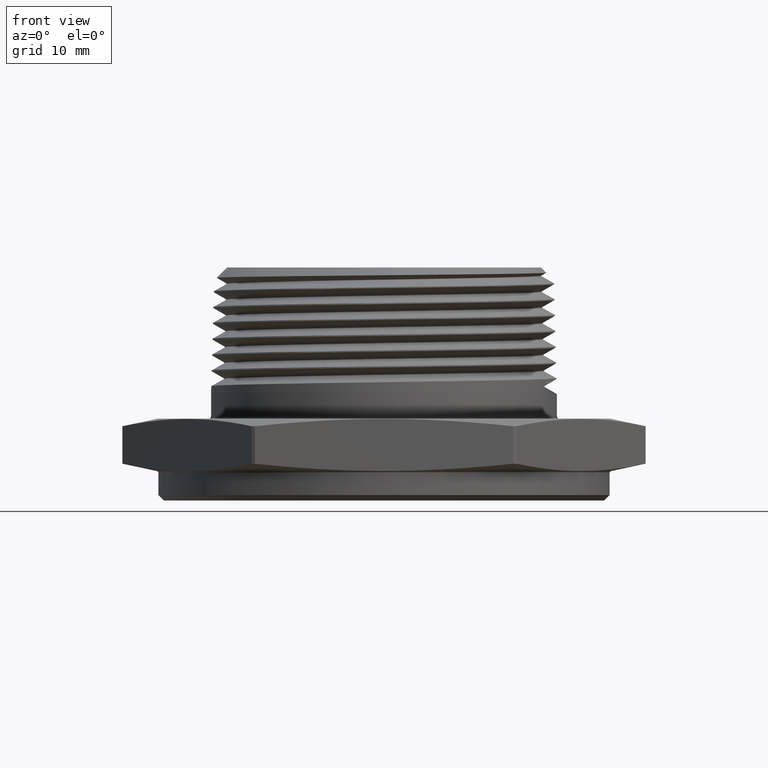
[diagram: clean part render]
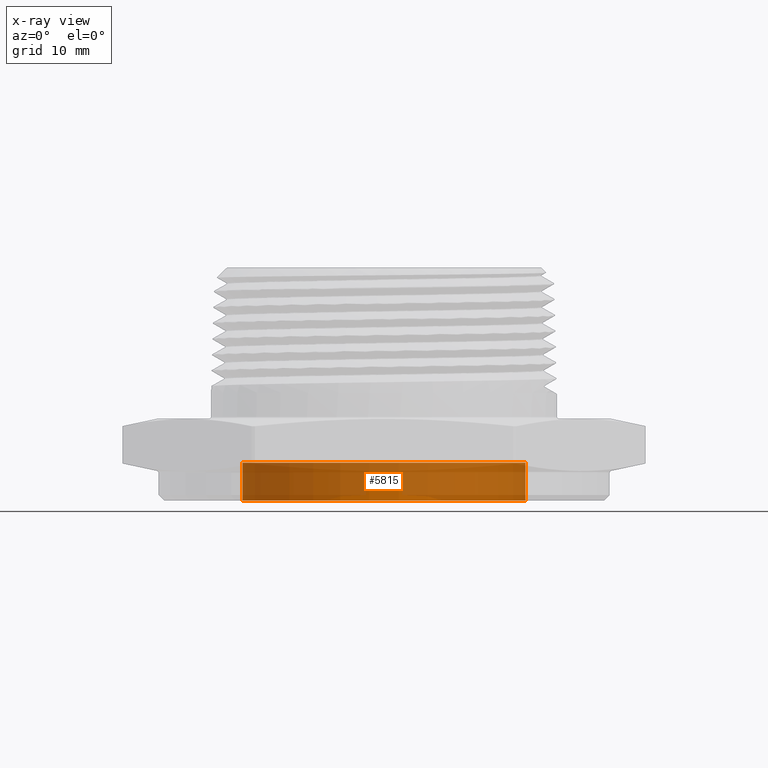
[diagram: x-ray — body ghosted, one internal face saturated and labeled with its STEP entity id]
A machine part, front view, then the same camera in x-ray: the body is ghosted and one INTERNAL B-rep face — a face not visible from any outside direction — is saturated and labeled: STEP entity #5815.
In plain terms, the highlighted cylindrical surface (partial cylindrical patch) has radius 19.7358 mm, axis along (-0, -0, 1).
Its self-contained STEP definition (entity closure, byte-faithful):
#21 = VERTEX_POINT ( 'NONE', #7777 ) ;
#61 = AXIS2_PLACEMENT_3D ( 'NONE', #763, #764, #761 ) ;
#112 = EDGE_CURVE ( 'NONE', #21, #696, #5138, .T. ) ;
#113 = EDGE_CURVE ( 'NONE', #696, #678, #5139, .T. ) ;
#114 = EDGE_CURVE ( 'NONE', #692, #678, #5144, .T. ) ;
#116 = EDGE_CURVE ( 'NONE', #21, #692, #5145, .T. ) ;
#248 = AXIS2_PLACEMENT_3D ( 'NONE', #7290, #7289, #7288 ) ;
#250 = AXIS2_PLACEMENT_3D ( 'NONE', #7281, #7280, #7279 ) ;
#580 = FACE_OUTER_BOUND ( 'NONE', #5020, .T. ) ;
#586 = CYLINDRICAL_SURFACE ( 'NONE', #61, 0.7769999999999999100 ) ;
#678 = VERTEX_POINT ( 'NONE', #3566 ) ;
#692 = VERTEX_POINT ( 'NONE', #3580 ) ;
#696 = VERTEX_POINT ( 'NONE', #3584 ) ;
#761 = DIRECTION ( 'NONE',  ( 1.000000000000000000, 0.0000000000000000000, 0.0000000000000000000 ) ) ;
#763 = CARTESIAN_POINT ( 'NONE',  ( 1.224646799147352600E-018, 0.0000000000000000000, -0.1600000000000000000 ) ) ;
#764 = DIRECTION ( 'NONE',  ( -2.307956700049595900E-032, -0.0000000000000000000, 1.000000000000000000 ) ) ;
#3566 = CARTESIAN_POINT ( 'NONE',  ( 0.7769999999999999100, 0.0000000000000000000, 0.04685039370078740400 ) ) ;
#3580 = CARTESIAN_POINT ( 'NONE',  ( 0.7769999999999999100, 0.0000000000000000000, -0.1600000000000000000 ) ) ;
#3584 = CARTESIAN_POINT ( 'NONE',  ( -0.7769999999999999100, 9.515505629374934300E-017, 0.04685039370078740400 ) ) ;
#5020 = EDGE_LOOP ( 'NONE', ( #7453, #7465, #7500, #7479 ) ) ;
#5138 = LINE ( 'NONE', #7297, #5143 ) ;
#5139 = CIRCLE ( 'NONE', #248, 0.7769999999999999100 ) ;
#5143 = VECTOR ( 'NONE', #7292, 39.37007874015748100 ) ;
#5144 = LINE ( 'NONE', #7291, #5146 ) ;
#5145 = CIRCLE ( 'NONE', #250, 0.7769999999999999100 ) ;
#5146 = VECTOR ( 'NONE', #7293, 39.37007874015748100 ) ;
#5815 = ADVANCED_FACE ( 'NONE', ( #580 ), #586, .F. ) ;
#7279 = DIRECTION ( 'NONE',  ( 1.000000000000000000, 0.0000000000000000000, 0.0000000000000000000 ) ) ;
#7280 = DIRECTION ( 'NONE',  ( -2.307956700049595900E-032, -0.0000000000000000000, 1.000000000000000000 ) ) ;
#7281 = CARTESIAN_POINT ( 'NONE',  ( 1.224646799147352600E-018, 0.0000000000000000000, -0.1600000000000000000 ) ) ;
#7288 = DIRECTION ( 'NONE',  ( 1.000000000000000000, 0.0000000000000000000, 0.0000000000000000000 ) ) ;
#7289 = DIRECTION ( 'NONE',  ( -2.307956700049595900E-032, -0.0000000000000000000, 1.000000000000000000 ) ) ;
#7290 = CARTESIAN_POINT ( 'NONE',  ( 1.224646799147347800E-018, 0.0000000000000000000, 0.04685039370078740400 ) ) ;
#7291 = CARTESIAN_POINT ( 'NONE',  ( 0.7769999999999999100, 0.0000000000000000000, -0.1600000000000000000 ) ) ;
#7292 = DIRECTION ( 'NONE',  ( -2.307956700049595600E-032, -0.0000000000000000000, 1.000000000000000000 ) ) ;
#7293 = DIRECTION ( 'NONE',  ( -2.307956700049595600E-032, -0.0000000000000000000, 1.000000000000000000 ) ) ;
#7297 = CARTESIAN_POINT ( 'NONE',  ( -0.7769999999999999100, 9.515505629374934300E-017, -0.1600000000000000000 ) ) ;
#7453 = ORIENTED_EDGE ( 'NONE', *, *, #116, .F. ) ;
#7465 = ORIENTED_EDGE ( 'NONE', *, *, #112, .T. ) ;
#7479 = ORIENTED_EDGE ( 'NONE', *, *, #114, .F. ) ;
#7500 = ORIENTED_EDGE ( 'NONE', *, *, #113, .T. ) ;
#7777 = CARTESIAN_POINT ( 'NONE',  ( -0.7769999999999999100, 9.515505629374934300E-017, -0.1600000000000000000 ) ) ;